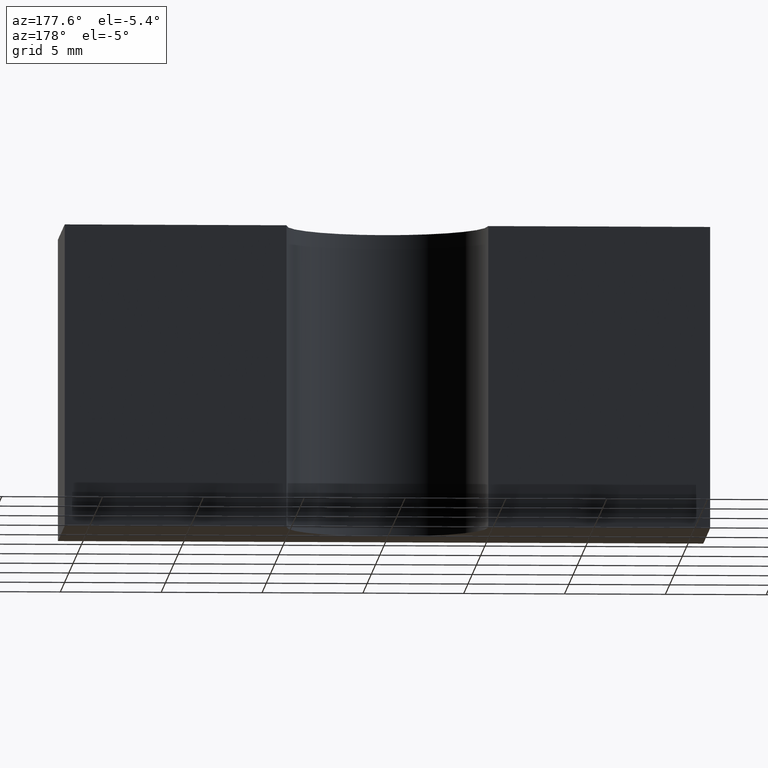
[diagram: clean part render]
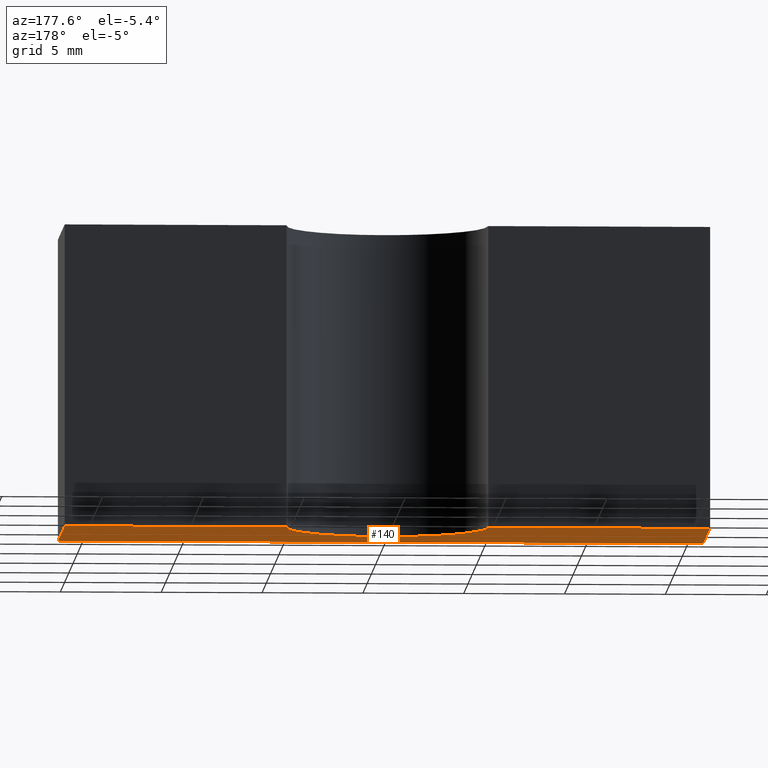
[diagram: same view with one face highlighted and labeled with its STEP entity id]
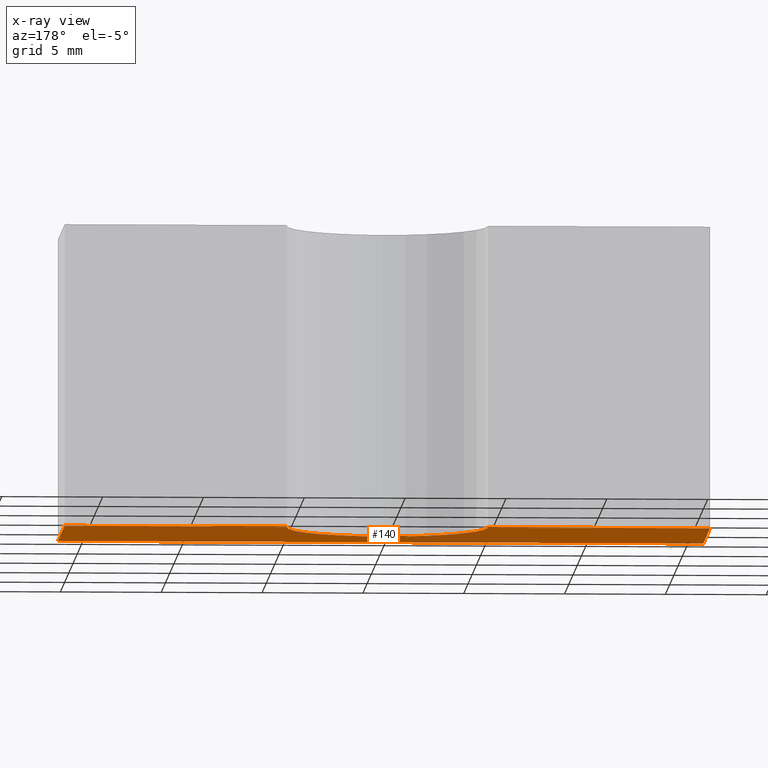
[diagram: x-ray of the same camera — body ghosted, the highlighted face saturated]
A machine part, auxiliary view. The second image highlights one B-rep face of the part: STEP entity #140.
The next image is the same camera in x-ray: the body ghosted, the highlighted face saturated — about 0% of this face is hidden behind the body in this view.
In plain terms, the highlighted planar face has unit normal (0, 0, 1).
Its self-contained STEP definition (entity closure, byte-faithful):
#17=FACE_OUTER_BOUND('',#25,.T.);
#25=EDGE_LOOP('',(#97,#98,#99,#100,#101,#102));
#33=CIRCLE('',#172,5.);
#35=LINE('',#223,#51);
#36=LINE('',#225,#52);
#37=LINE('',#227,#53);
#38=LINE('',#229,#54);
#39=LINE('',#232,#55);
#51=VECTOR('',#185,10.);
#52=VECTOR('',#186,10.);
#53=VECTOR('',#187,10.);
#54=VECTOR('',#188,10.);
#55=VECTOR('',#191,10.);
#67=VERTEX_POINT('',#221);
#68=VERTEX_POINT('',#222);
#69=VERTEX_POINT('',#224);
#70=VERTEX_POINT('',#226);
#71=VERTEX_POINT('',#228);
#72=VERTEX_POINT('',#230);
#79=EDGE_CURVE('',#67,#68,#35,.T.);
#80=EDGE_CURVE('',#69,#67,#36,.T.);
#81=EDGE_CURVE('',#70,#69,#37,.T.);
#82=EDGE_CURVE('',#71,#70,#38,.T.);
#83=EDGE_CURVE('',#72,#71,#33,.T.);
#84=EDGE_CURVE('',#68,#72,#39,.T.);
#97=ORIENTED_EDGE('',*,*,#79,.F.);
#98=ORIENTED_EDGE('',*,*,#80,.F.);
#99=ORIENTED_EDGE('',*,*,#81,.F.);
#100=ORIENTED_EDGE('',*,*,#82,.F.);
#101=ORIENTED_EDGE('',*,*,#83,.F.);
#102=ORIENTED_EDGE('',*,*,#84,.F.);
#133=PLANE('',#171);
#140=ADVANCED_FACE('',(#17),#133,.F.);
#171=AXIS2_PLACEMENT_3D('',#220,#183,#184);
#172=AXIS2_PLACEMENT_3D('',#231,#189,#190);
#183=DIRECTION('center_axis',(0.,0.,1.));
#184=DIRECTION('ref_axis',(1.,0.,0.));
#185=DIRECTION('',(0.,1.,0.));
#186=DIRECTION('',(1.,1.90819582357449E-16,0.));
#187=DIRECTION('',(0.,-1.,0.));
#188=DIRECTION('',(-1.,-5.04646829375071E-17,0.));
#189=DIRECTION('center_axis',(0.,0.,-1.));
#190=DIRECTION('ref_axis',(1.,-1.11022302462516E-16,0.));
#191=DIRECTION('',(-1.,0.,0.));
#220=CARTESIAN_POINT('Origin',(-1.38777878078145E-15,-0.259581799378332,
-7.5));
#221=CARTESIAN_POINT('',(16.,-3.99999999999999,-7.5));
#222=CARTESIAN_POINT('',(16.,4.,-7.5));
#223=CARTESIAN_POINT('',(16.,-3.99999999999999,-7.5));
#224=CARTESIAN_POINT('',(-16.,-4.,-7.5));
#225=CARTESIAN_POINT('',(-16.,-4.,-7.5));
#226=CARTESIAN_POINT('',(-16.,4.,-7.5));
#227=CARTESIAN_POINT('',(-16.,4.,-7.5));
#228=CARTESIAN_POINT('',(-5.,4.,-7.5));
#229=CARTESIAN_POINT('',(-5.,4.,-7.5));
#230=CARTESIAN_POINT('',(5.,4.,-7.5));
#231=CARTESIAN_POINT('Origin',(0.,4.,-7.5));
#232=CARTESIAN_POINT('',(16.,4.,-7.5));